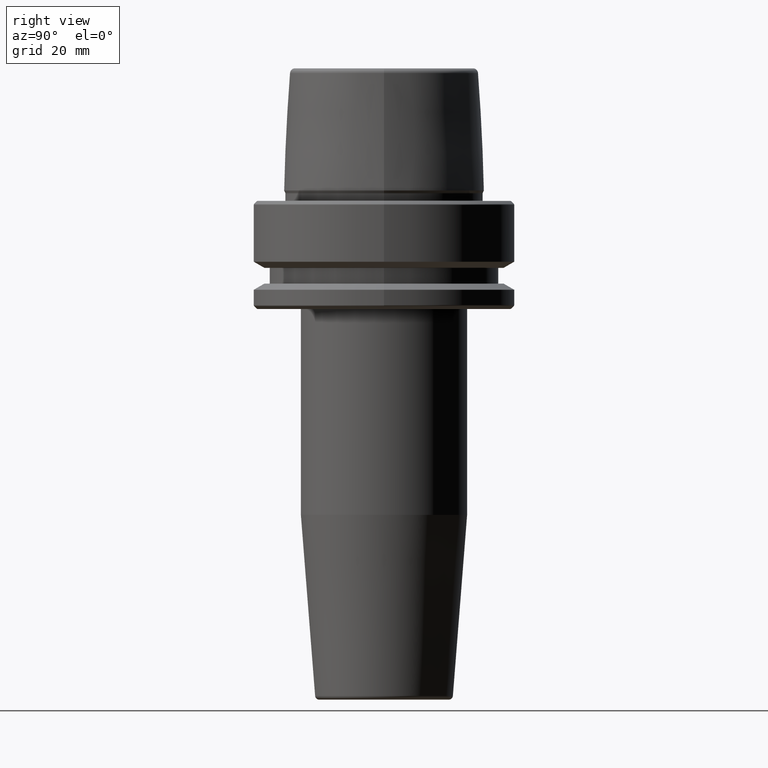
[diagram: clean part render]
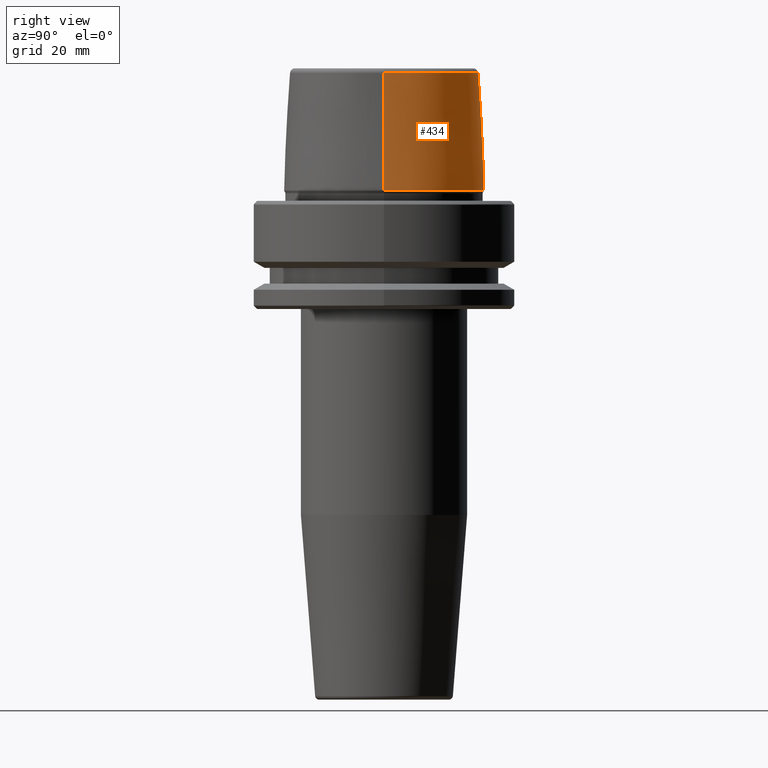
[diagram: same view with one face highlighted and labeled with its STEP entity id]
A machine part, right view. The second image highlights one B-rep face of the part: STEP entity #434.
In plain terms, the highlighted conical surface has half-angle 2.868 deg.
Its self-contained STEP definition (entity closure, byte-faithful):
#2 = EDGE_LOOP ( 'NONE', ( #1105, #490, #379, #1140 ) ) ;
#25 = EDGE_CURVE ( 'NONE', #180, #1230, #140, .T. ) ;
#50 = VERTEX_POINT ( 'NONE', #445 ) ;
#106 = EDGE_CURVE ( 'NONE', #50, #189, #501, .T. ) ;
#140 = CIRCLE ( 'NONE', #451, 22.77957961851797100 ) ;
#159 = CARTESIAN_POINT ( 'NONE',  ( 0.0000000000000000000, 0.0000000000000000000, 2.500000000000002200 ) ) ;
#168 = DIRECTION ( 'NONE',  ( 0.0000000000000000000, 0.0000000000000000000, -1.000000000000000000 ) ) ;
#180 = VERTEX_POINT ( 'NONE', #740 ) ;
#185 = DIRECTION ( 'NONE',  ( -0.0000000000000000000, -0.0000000000000000000, 1.000000000000000000 ) ) ;
#189 = VERTEX_POINT ( 'NONE', #376 ) ;
#194 = CARTESIAN_POINT ( 'NONE',  ( -22.77957961851797100, 0.0000000000000000000, 30.76004333261571900 ) ) ;
#292 = EDGE_CURVE ( 'NONE', #1230, #189, #939, .T. ) ;
#308 = DIRECTION ( 'NONE',  ( 1.000000000000000000, 0.0000000000000000000, 0.0000000000000000000 ) ) ;
#376 = CARTESIAN_POINT ( 'NONE',  ( -24.19537568275369200, 2.963078938405201500E-015, 2.500000000000002200 ) ) ;
#379 = ORIENTED_EDGE ( 'NONE', *, *, #106, .T. ) ;
#422 = CONICAL_SURFACE ( 'NONE', #1255, 24.19537568275369200, 0.05005701257455997400 ) ;
#434 = ADVANCED_FACE ( 'NONE', ( #940 ), #422, .T. ) ;
#441 = DIRECTION ( 'NONE',  ( -1.000000000000000000, 0.0000000000000000000, 0.0000000000000000000 ) ) ;
#445 = CARTESIAN_POINT ( 'NONE',  ( 24.19537568275369200, 0.0000000000000000000, 2.500000000000002200 ) ) ;
#451 = AXIS2_PLACEMENT_3D ( 'NONE', #1043, #1152, #1060 ) ;
#453 = VECTOR ( 'NONE', #1055, 1000.000000000000200 ) ;
#490 = ORIENTED_EDGE ( 'NONE', *, *, #1104, .T. ) ;
#501 = CIRCLE ( 'NONE', #975, 24.19537568275369200 ) ;
#639 = DIRECTION ( 'NONE',  ( 0.05003611051310804400, 6.127656258166099700E-018, -0.9987474093306675200 ) ) ;
#723 = CARTESIAN_POINT ( 'NONE',  ( 0.0000000000000000000, 0.0000000000000000000, 2.500000000000002200 ) ) ;
#740 = CARTESIAN_POINT ( 'NONE',  ( 22.77957961851797100, 2.876386432489616700E-015, 30.76004333261571900 ) ) ;
#939 = LINE ( 'NONE', #1127, #453 ) ;
#940 = FACE_OUTER_BOUND ( 'NONE', #2, .T. ) ;
#975 = AXIS2_PLACEMENT_3D ( 'NONE', #723, #185, #308 ) ;
#981 = VECTOR ( 'NONE', #639, 1000.000000000000200 ) ;
#1043 = CARTESIAN_POINT ( 'NONE',  ( 0.0000000000000000000, 0.0000000000000000000, 30.76004333261571900 ) ) ;
#1055 = DIRECTION ( 'NONE',  ( -0.05003611051310804400, 0.0000000000000000000, -0.9987474093306675200 ) ) ;
#1060 = DIRECTION ( 'NONE',  ( 1.000000000000000000, 0.0000000000000000000, 0.0000000000000000000 ) ) ;
#1104 = EDGE_CURVE ( 'NONE', #180, #50, #1258, .T. ) ;
#1105 = ORIENTED_EDGE ( 'NONE', *, *, #25, .F. ) ;
#1127 = CARTESIAN_POINT ( 'NONE',  ( -24.19537568275369200, 0.0000000000000000000, 2.500000000000002200 ) ) ;
#1140 = ORIENTED_EDGE ( 'NONE', *, *, #292, .F. ) ;
#1152 = DIRECTION ( 'NONE',  ( -0.0000000000000000000, -0.0000000000000000000, 1.000000000000000000 ) ) ;
#1230 = VERTEX_POINT ( 'NONE', #194 ) ;
#1232 = CARTESIAN_POINT ( 'NONE',  ( 24.19537568275369200, 2.963078938405201500E-015, 2.500000000000002200 ) ) ;
#1255 = AXIS2_PLACEMENT_3D ( 'NONE', #159, #168, #441 ) ;
#1258 = LINE ( 'NONE', #1232, #981 ) ;